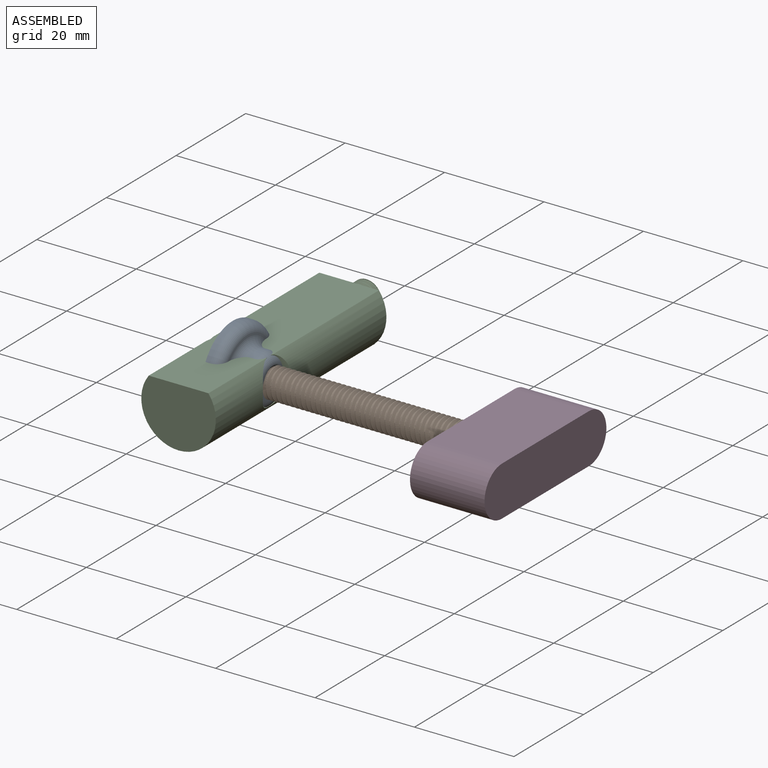
[diagram: assembled view]
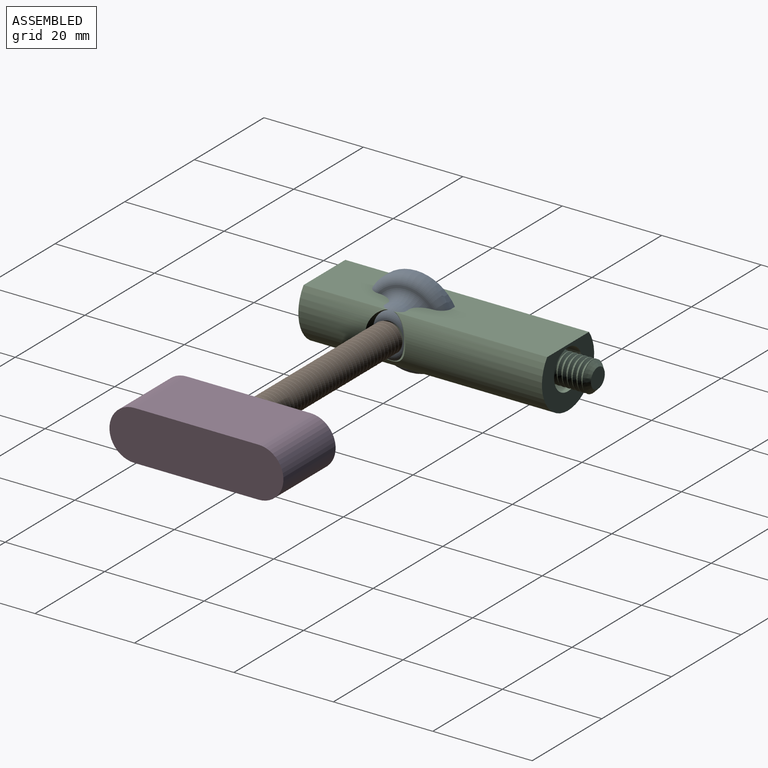
[diagram: assembled view, second angle]
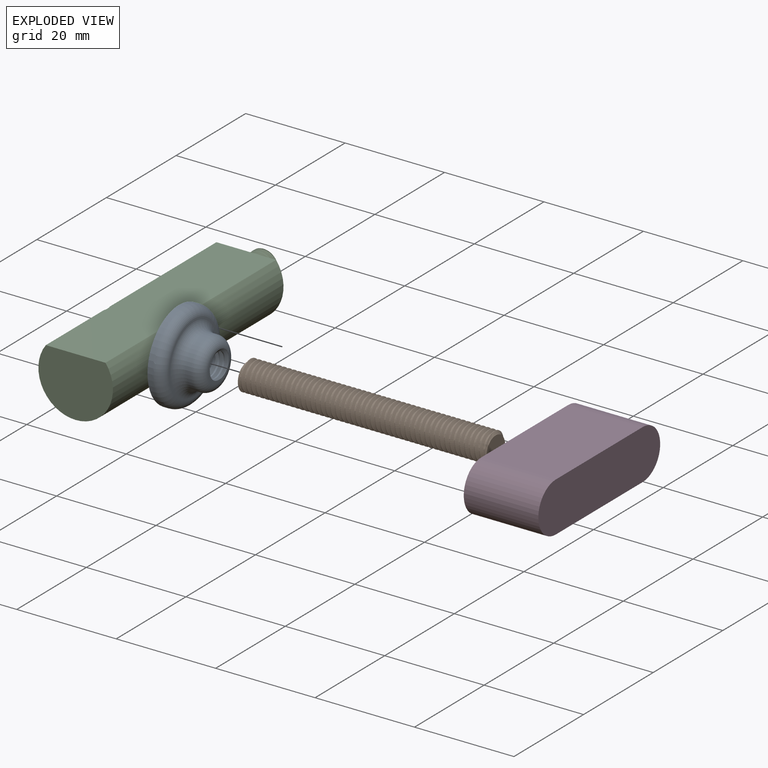
[diagram: exploded view]
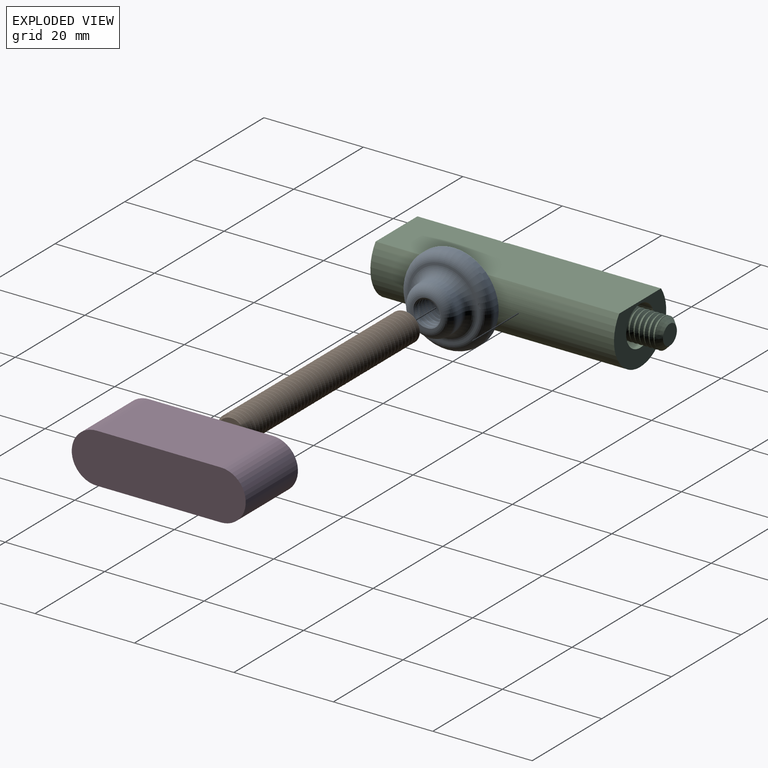
[diagram: exploded view, second angle]
ASSEMBLY  parts=4 mates=5
PART A: 14 faces, bbox 9.1x19.7x19.7 mm
  f0: cylinder r=5mm len=10mm, axis (1,0,0), area 31.4mm2, adj f4,f13
  f1: plane 6.24x6.24mm, normal (1,0,0), area 4.7mm2, adj f7,f8,f12,f13
  f2: cylinder r=9mm len=18mm, axis (1,0,0), area 56.5mm2, adj f3,f5
  f3: plane 18x18mm, normal (-1,0,0), area 254.5mm2, adj f2
  f4: torus R=7mm, axis (-1,0,0), area 113mm2, adj f0,f5
  f5: torus R=7mm, axis (-1,0,0), area 163.3mm2, adj f2,f4
  f6: cone r=0mm half-angle=59deg, axis (1,0,0), area 33mm2, adj f10,f11
  f7: bspline ~7.02x6.08mm, area 54.4mm2, adj f1,f9,f10,f11,f12,f13
  f8: bspline ~7.02x6.08mm, area 54.5mm2, adj f1,f9,f10,f11,f12,f13
  f9: bspline ~7.13x6.17mm, area 13.9mm2, adj f7,f8,f10,f13
  f10: plane 2.26x2.22mm, normal (1,0,0), area 0.2mm2, adj f6,f7,f8,f9
  f11: plane 6.24x6.24mm, normal (-1,0,0), area 4.7mm2, adj f6,f7,f8,f12
  f12: cylinder r=2.5mm len=5mm, axis (-1,0,0), area 19mm2, adj f1,f7,f8,f11
  f13: torus R=3mm, axis (-1,0,0), area 84.2mm2, adj f0,f1,f7,f8,f9
PART B: 6 faces, bbox 51.1x7.2x6.3 mm
  f0: cylinder r=3mm len=50mm, axis (-1,0,0), area 413.5mm2, adj f1,f2,f4,f5
  f1: plane 5.69x5.66mm, normal (1,0,0), area 22.8mm2, adj f0,f3,f4,f5
  f2: plane 5.69x5.66mm, normal (-1,0,0), area 22.8mm2, adj f0,f3,f4,f5
  f3: bspline ~50.75x5.68mm, area 212.4mm2, adj f1,f2,f4,f5
  f4: bspline ~50.81x6.93mm, area 536.4mm2, adj f0,f1,f2,f3
  f5: bspline ~50.65x6.93mm, area 538.9mm2, adj f0,f1,f2,f3
PART C: 31 faces, bbox 15.3x55.3x12.4 mm
  f0: bspline ~9.22x8mm, area 36.8mm2, adj f2,f4,f17,f18,f19,f20,f21,f22
  f1: bspline ~9.22x8mm, area 36.8mm2, adj f2,f4,f17,f23,f24,f25,f26,f28
  f2: cylinder r=7.5mm len=49mm, axis (0,1,0), area 1512.8mm2, adj f0,f1,f4,f5,f7
  f3: cylinder r=3mm len=24mm, axis (0,-1,0), area 37.9mm2, adj f8,f10,f12,f13
  f4: plane 49x12mm, normal (0,0,1), area 587.7mm2, adj f0,f1,f2,f5,f7
  f5: plane 15x12mm, normal (0,-1,0), area 151.6mm2, adj f2,f4
  f6: cylinder r=4mm len=19mm, axis (0,-1,0), area 477.5mm2, adj f7,f8
  f7: plane 15x12mm, normal (0,1,0), area 101.3mm2, adj f2,f4,f6
  f8: plane 8.28x8.28mm, normal (0,1,0), area 27.5mm2, adj f3,f6,f11,f12,f13
  f9: plane 4x4mm, normal (0,1,0), area 12.6mm2, adj f10
  f10: cone r=3mm half-angle=45deg, axis (0,-1,0), area 22.2mm2, adj f3,f9,f14
  f11: bspline ~24.75x5.68mm, area 102.2mm2, adj f8,f12,f13,f14
  f12: bspline ~24.81x6.93mm, area 257.5mm2, adj f3,f8,f11,f14
  f13: bspline ~24.65x6.93mm, area 258mm2, adj f3,f8,f11,f14
  f14: plane 6.28x6.28mm, normal (0,-1,0), area 5.5mm2, adj f10,f11,f12,f13
  f15: bspline ~13.81x7.02mm, area 142.4mm2, adj f17,f27,f29,f30
  f16: bspline ~13.81x7.02mm, area 140.3mm2, adj f17,f27,f29,f30
  f17: bspline ~13.46x7.13mm, area 34.2mm2, adj f0,f1,f15,f16,f18,f19,f20,f21
  f18: cylinder r=3.06mm len=5.97mm, axis (-1,0,0), area 2.3mm2, adj f0,f17,f30
  f19: cylinder r=3.06mm len=4.92mm, axis (-1,0,0), area 2.9mm2, adj f0,f17
  f20: cylinder r=3.06mm len=3.26mm, axis (-1,0,0), area 0mm2, adj f0,f17
  f21: cylinder r=3.06mm len=5.84mm, axis (-1,0,0), area 4.8mm2, adj f0,f17,f30
  f22: cylinder r=3.06mm len=0.9mm, axis (-1,0,0), area 0mm2, adj f0,f17,f30
  f23: cylinder r=3.06mm len=2.11mm, axis (-1,0,0), area 0mm2, adj f1,f17
  f24: cylinder r=3.06mm len=4.58mm, axis (-1,0,0), area 0.7mm2, adj f1,f17,f29
  f25: cylinder r=3.06mm len=5.55mm, axis (-1,0,0), area 4.6mm2, adj f1,f17,f29
  f26: cylinder r=3.06mm len=4.15mm, axis (-1,0,0), area 0mm2, adj f1,f17
  f27: cylinder r=2.5mm len=13mm, axis (-1,0,0), area 107.2mm2, adj f15,f16,f29,f30
  f28: cylinder r=3.06mm len=5.97mm, axis (-1,0,0), area 3.8mm2, adj f1,f17,f29
  f29: plane 6.41x6.29mm, normal (1,0,0), area 5.6mm2, adj f1,f15,f16,f17,f24,f25,f27,f28
  f30: plane 6.41x6.29mm, normal (-1,0,0), area 5.6mm2, adj f0,f15,f16,f17,f18,f21,f22,f27
PART D: 13 faces, bbox 15.7x35.3x10.3 mm
  f0: plane 25x15mm, normal (0,0,1), area 375mm2, adj f1,f3,f4,f5
  f1: cylinder r=5mm len=15mm, axis (-1,0,0), area 235.6mm2, adj f0,f2,f4,f5
  f2: plane 25x15mm, normal (0,0,-1), area 375mm2, adj f1,f3,f4,f5
  f3: cylinder r=5mm len=15mm, axis (-1,0,0), area 235.6mm2, adj f0,f2,f4,f5
  f4: plane 35x10mm, normal (1,0,0), area 328.5mm2, adj f0,f1,f2,f3
  f5: plane 35.29x10.29mm, normal (-1,0,0), area 304.8mm2, adj f0,f1,f2,f3,f7,f8,f9,f12
  f6: cone r=0mm half-angle=59deg, axis (-1,0,0), area 33mm2, adj f10,f11
  f7: bspline ~7.02x6.08mm, area 54.4mm2, adj f5,f9,f10,f11,f12
  f8: bspline ~7.02x6.08mm, area 54.5mm2, adj f5,f9,f10,f11,f12
  f9: bspline ~7.13x6.17mm, area 13.9mm2, adj f5,f7,f8,f10
  f10: plane 2.26x2.22mm, normal (-1,0,0), area 0.2mm2, adj f6,f7,f8,f9
  f11: plane 6.24x6.24mm, normal (1,0,0), area 4.7mm2, adj f6,f7,f8,f12
  f12: cylinder r=2.5mm len=5mm, axis (1,0,0), area 19mm2, adj f5,f7,f8,f11
PLACE A t=(6.41,1.38,5.06)mm
PLACE B rot(axis=(1,0,0),137.3deg) t=(1.41,-68.83,44.54)mm
PLACE C t=(-9.2,-8.95,3.56)mm
PLACE D t=(-3.59,1.28,4.77)mm
MATE cylindrical D.f6 <-> B.f1  axis (-1,0,0) through (-103.59,-41.55,10.77)mm
MATE cylindrical B.f0 <-> A.f0  axis (-1,0,0) through (-148.59,-41.45,11.06)mm
MATE planar B.f0 <-> D.f6  axis (1,0,0) through (-98.59,-41.45,11.06)mm
MATE cylindrical B.f0 <-> C.f18  axis (1,0,0) through (-98.59,-41.45,11.06)mm
MATE planar B.f2 <-> A.f0  axis (-1,0,0) through (-148.59,-41.55,10.77)mm
